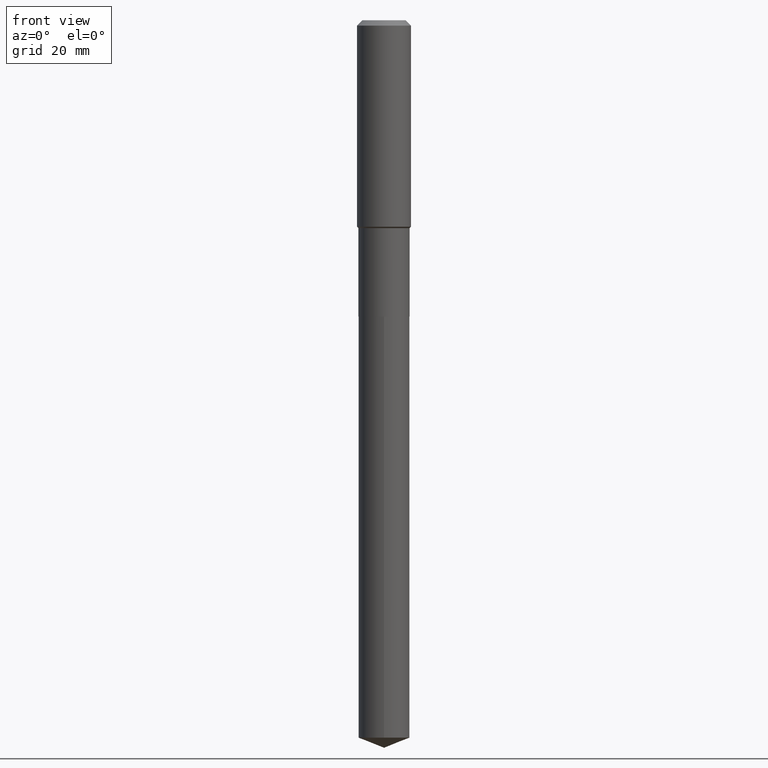
[diagram: clean part render]
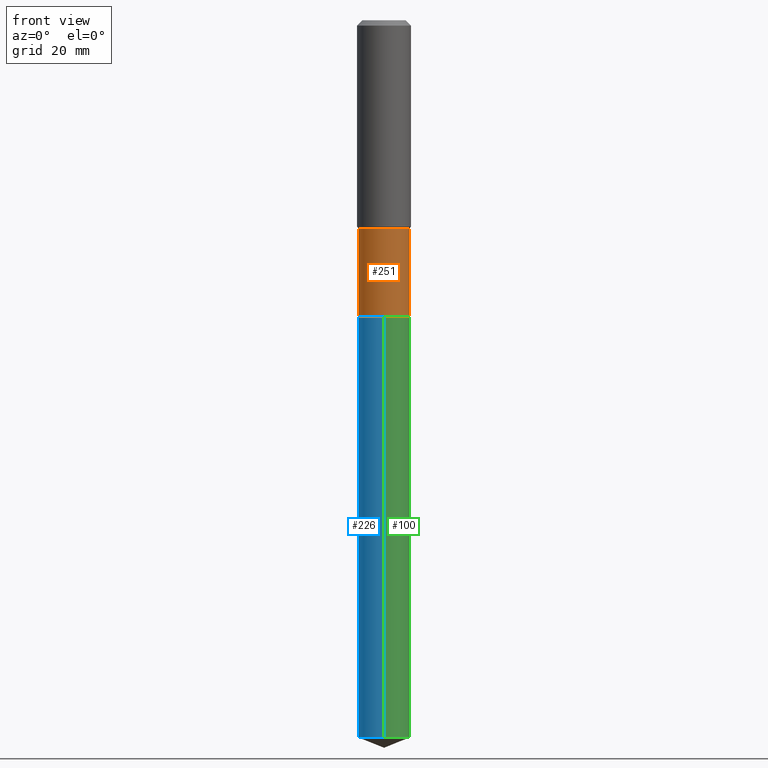
[diagram: same view with three faces highlighted in distinct colors, each labeled with its STEP entity id]
A machine part, front view with three faces highlighted in distinct colors.
Their STEP definitions:

[orange] entity #251 — the highlighted cylindrical surface (edge-blend (fillet) strip) has radius 5.6998 mm, axis along (-0, 0, 1).
#11 = VERTEX_POINT ( 'NONE', #417 ) ;
#28 = DIRECTION ( 'NONE',  ( -2.445468806185136597E-29, 3.491481338843145583E-15, 1.000000000000000000 ) ) ;
#40 = DIRECTION ( 'NONE',  ( 1.000000000000000000, -6.982962677686266711E-15, 0.000000000000000000 ) ) ;
#79 = DIRECTION ( 'NONE',  ( 1.000000000000000000, -6.982962677686266711E-15, 4.876176775795936353E-29 ) ) ;
#95 = CARTESIAN_POINT ( 'NONE',  ( 0.2243999999999999329, -1.566976824872797810E-15, 1.094214068488607769E-29 ) ) ;
#97 = CARTESIAN_POINT ( 'NONE',  ( 4.456622352391794524E-29, -6.362875591907751010E-15, -1.822400000000000686 ) ) ;
#116 = CARTESIAN_POINT ( 'NONE',  ( 0.000000000000000000, 0.000000000000000000, 0.000000000000000000 ) ) ;
#138 = AXIS2_PLACEMENT_3D ( 'NONE', #232, #385, #40 ) ;
#139 = VERTEX_POINT ( 'NONE', #471 ) ;
#141 = VERTEX_POINT ( 'NONE', #432 ) ;
#157 = CIRCLE ( 'NONE', #260, 0.2243999999999999051 ) ;
#160 = CARTESIAN_POINT ( 'NONE',  ( -0.2243999999999999606, -6.122239581998517513E-15, -2.597900000000000542 ) ) ;
#164 = FACE_OUTER_BOUND ( 'NONE', #234, .T. ) ;
#169 = CARTESIAN_POINT ( 'NONE',  ( -0.2243999999999999329, 1.594457899045664340E-15, -1.103809034253200604E-29 ) ) ;
#172 = DIRECTION ( 'NONE',  ( 1.000000000000000000, -6.982962677686265922E-15, 0.000000000000000000 ) ) ;
#183 = ORIENTED_EDGE ( 'NONE', *, *, #449, .F. ) ;
#197 = VERTEX_POINT ( 'NONE', #160 ) ;
#232 = CARTESIAN_POINT ( 'NONE',  ( 6.353083411588368076E-29, -9.070519370180611907E-15, -2.597900000000000542 ) ) ;
#234 = EDGE_LOOP ( 'NONE', ( #183, #372, #298, #269 ) ) ;
#251 = ADVANCED_FACE ( 'NONE', ( #164 ), #310, .T. ) ;
#260 = AXIS2_PLACEMENT_3D ( 'NONE', #97, #28, #172 ) ;
#269 = ORIENTED_EDGE ( 'NONE', *, *, #338, .F. ) ;
#273 = VECTOR ( 'NONE', #316, 39.37007874015748143 ) ;
#276 = EDGE_CURVE ( 'NONE', #197, #141, #427, .T. ) ;
#298 = ORIENTED_EDGE ( 'NONE', *, *, #423, .T. ) ;
#310 = CYLINDRICAL_SURFACE ( 'NONE', #437, 0.2243999999999999329 ) ;
#316 = DIRECTION ( 'NONE',  ( -2.445468806185136877E-29, 3.491481338843145188E-15, 1.000000000000000000 ) ) ;
#338 = EDGE_CURVE ( 'NONE', #139, #11, #157, .T. ) ;
#342 = VECTOR ( 'NONE', #434, 39.37007874015748143 ) ;
#372 = ORIENTED_EDGE ( 'NONE', *, *, #276, .T. ) ;
#385 = DIRECTION ( 'NONE',  ( -2.445468806185136597E-29, 3.491481338843145583E-15, 1.000000000000000000 ) ) ;
#417 = CARTESIAN_POINT ( 'NONE',  ( 0.2243999999999999051, -7.929852416780548622E-15, -1.822400000000000686 ) ) ;
#419 = DIRECTION ( 'NONE',  ( -2.445468806185136597E-29, 3.491481338843145583E-15, 1.000000000000000000 ) ) ;
#423 = EDGE_CURVE ( 'NONE', #141, #11, #439, .T. ) ;
#427 = CIRCLE ( 'NONE', #138, 0.2244000000000000161 ) ;
#432 = CARTESIAN_POINT ( 'NONE',  ( 0.2244000000000000161, -1.063749619505341031E-14, -2.597900000000000542 ) ) ;
#434 = DIRECTION ( 'NONE',  ( -2.445468806185136877E-29, 3.491481338843145188E-15, 1.000000000000000000 ) ) ;
#437 = AXIS2_PLACEMENT_3D ( 'NONE', #116, #419, #79 ) ;
#439 = LINE ( 'NONE', #95, #342 ) ;
#449 = EDGE_CURVE ( 'NONE', #197, #139, #474, .T. ) ;
#471 = CARTESIAN_POINT ( 'NONE',  ( -0.2243999999999999051, -6.122239581998517513E-15, -1.822400000000000686 ) ) ;
#474 = LINE ( 'NONE', #169, #273 ) ;

[blue] entity #226 — the highlighted cylindrical surface (edge-blend (fillet) strip) has radius 5.6998 mm, axis along (-0, 0, 1).
#16 = CARTESIAN_POINT ( 'NONE',  ( 1.594457899045728238E-15, 0.2243999999999909123, -2.598400000000001597 ) ) ;
#44 = CARTESIAN_POINT ( 'NONE',  ( 6.354306145991460877E-29, -9.072265110850034200E-15, -2.598400000000000709 ) ) ;
#45 = VERTEX_POINT ( 'NONE', #475 ) ;
#48 = CARTESIAN_POINT ( 'NONE',  ( 1.594457899045818168E-15, 0.2243999999999780059, -6.289506489272009837 ) ) ;
#57 = DIRECTION ( 'NONE',  ( -6.982962677686265133E-15, -1.000000000000000000, 2.434802133390608632E-15 ) ) ;
#67 = ORIENTED_EDGE ( 'NONE', *, *, #121, .F. ) ;
#102 = ORIENTED_EDGE ( 'NONE', *, *, #457, .T. ) ;
#121 = EDGE_CURVE ( 'NONE', #257, #407, #436, .T. ) ;
#133 = DIRECTION ( 'NONE',  ( -2.445449169258695004E-29, 3.491509460039474509E-15, 1.000000000000000000 ) ) ;
#135 = EDGE_CURVE ( 'NONE', #191, #257, #250, .T. ) ;
#153 = DIRECTION ( 'NONE',  ( -2.445449169258695004E-29, 3.491509460039474509E-15, 1.000000000000000000 ) ) ;
#158 = CYLINDRICAL_SURFACE ( 'NONE', #438, 0.2244000000000000161 ) ;
#165 = DIRECTION ( 'NONE',  ( -2.445449169258695004E-29, 3.491509460039474509E-15, 1.000000000000000000 ) ) ;
#166 = CIRCLE ( 'NONE', #489, 0.2244000000000000161 ) ;
#191 = VERTEX_POINT ( 'NONE', #48 ) ;
#226 = ADVANCED_FACE ( 'NONE', ( #467 ), #158, .T. ) ;
#241 = EDGE_LOOP ( 'NONE', ( #255, #446, #102, #67 ) ) ;
#249 = CARTESIAN_POINT ( 'NONE',  ( 6.354306145991460877E-29, -9.072265110850034200E-15, -2.598400000000000709 ) ) ;
#250 = LINE ( 'NONE', #16, #294 ) ;
#255 = ORIENTED_EDGE ( 'NONE', *, *, #135, .F. ) ;
#257 = VERTEX_POINT ( 'NONE', #275 ) ;
#275 = CARTESIAN_POINT ( 'NONE',  ( 1.594457899045818957E-15, 0.2243999999999909123, -2.598400000000001597 ) ) ;
#286 = CARTESIAN_POINT ( 'NONE',  ( -1.566976824872734504E-15, -0.2244000000000090922, -2.598400000000000265 ) ) ;
#294 = VECTOR ( 'NONE', #315, 39.37007874015748143 ) ;
#315 = DIRECTION ( 'NONE',  ( -2.445449169258695004E-29, 3.491509460039474509E-15, 1.000000000000000000 ) ) ;
#332 = AXIS2_PLACEMENT_3D ( 'NONE', #249, #165, #57 ) ;
#361 = DIRECTION ( 'NONE',  ( -6.982962677686265133E-15, -1.000000000000000000, 4.869604266781217263E-15 ) ) ;
#389 = VECTOR ( 'NONE', #444, 39.37007874015748143 ) ;
#396 = LINE ( 'NONE', #286, #389 ) ;
#401 = EDGE_CURVE ( 'NONE', #191, #45, #166, .T. ) ;
#407 = VERTEX_POINT ( 'NONE', #441 ) ;
#436 = CIRCLE ( 'NONE', #332, 0.2244000000000000161 ) ;
#438 = AXIS2_PLACEMENT_3D ( 'NONE', #44, #153, #464 ) ;
#441 = CARTESIAN_POINT ( 'NONE',  ( -1.566976824872734504E-15, -0.2244000000000090922, -2.598400000000000265 ) ) ;
#444 = DIRECTION ( 'NONE',  ( -2.445449169258695004E-29, 3.491509460039474509E-15, 1.000000000000000000 ) ) ;
#446 = ORIENTED_EDGE ( 'NONE', *, *, #401, .T. ) ;
#457 = EDGE_CURVE ( 'NONE', #45, #407, #396, .T. ) ;
#464 = DIRECTION ( 'NONE',  ( -6.982962677686265133E-15, -1.000000000000000000, 2.434802133390608632E-15 ) ) ;
#467 = FACE_OUTER_BOUND ( 'NONE', #241, .T. ) ;
#469 = CARTESIAN_POINT ( 'NONE',  ( 1.538071944382707100E-28, -2.195979833615634179E-14, -6.289506489272008949 ) ) ;
#475 = CARTESIAN_POINT ( 'NONE',  ( -1.566976824872643982E-15, -0.2244000000000218875, -6.289506489272008061 ) ) ;
#489 = AXIS2_PLACEMENT_3D ( 'NONE', #469, #133, #361 ) ;

[green] entity #100 — the highlighted cylindrical surface (edge-blend (fillet) strip) has radius 5.6998 mm, axis along (-0, 0, 1).
#1 = EDGE_LOOP ( 'NONE', ( #70, #73, #159, #308 ) ) ;
#16 = CARTESIAN_POINT ( 'NONE',  ( 1.594457899045728238E-15, 0.2243999999999909123, -2.598400000000001597 ) ) ;
#27 = DIRECTION ( 'NONE',  ( -2.445449169258695004E-29, 3.491509460039474509E-15, 1.000000000000000000 ) ) ;
#37 = AXIS2_PLACEMENT_3D ( 'NONE', #393, #208, #206 ) ;
#45 = VERTEX_POINT ( 'NONE', #475 ) ;
#48 = CARTESIAN_POINT ( 'NONE',  ( 1.594457899045818168E-15, 0.2243999999999780059, -6.289506489272009837 ) ) ;
#58 = DIRECTION ( 'NONE',  ( -6.982962677686265133E-15, -1.000000000000000000, 4.869604266781217263E-15 ) ) ;
#70 = ORIENTED_EDGE ( 'NONE', *, *, #320, .T. ) ;
#73 = ORIENTED_EDGE ( 'NONE', *, *, #135, .T. ) ;
#90 = CARTESIAN_POINT ( 'NONE',  ( 1.538071944382707100E-28, -2.195979833615634179E-14, -6.289506489272008949 ) ) ;
#100 = ADVANCED_FACE ( 'NONE', ( #283 ), #440, .T. ) ;
#105 = AXIS2_PLACEMENT_3D ( 'NONE', #90, #27, #58 ) ;
#135 = EDGE_CURVE ( 'NONE', #191, #257, #250, .T. ) ;
#159 = ORIENTED_EDGE ( 'NONE', *, *, #371, .F. ) ;
#173 = CARTESIAN_POINT ( 'NONE',  ( 6.354306145991460877E-29, -9.072265110850034200E-15, -2.598400000000000709 ) ) ;
#191 = VERTEX_POINT ( 'NONE', #48 ) ;
#204 = CIRCLE ( 'NONE', #37, 0.2244000000000000161 ) ;
#206 = DIRECTION ( 'NONE',  ( -6.982962677686265133E-15, -1.000000000000000000, 2.434802133390608632E-15 ) ) ;
#208 = DIRECTION ( 'NONE',  ( -2.445449169258695004E-29, 3.491509460039474509E-15, 1.000000000000000000 ) ) ;
#221 = AXIS2_PLACEMENT_3D ( 'NONE', #173, #325, #397 ) ;
#250 = LINE ( 'NONE', #16, #294 ) ;
#257 = VERTEX_POINT ( 'NONE', #275 ) ;
#275 = CARTESIAN_POINT ( 'NONE',  ( 1.594457899045818957E-15, 0.2243999999999909123, -2.598400000000001597 ) ) ;
#283 = FACE_OUTER_BOUND ( 'NONE', #1, .T. ) ;
#286 = CARTESIAN_POINT ( 'NONE',  ( -1.566976824872734504E-15, -0.2244000000000090922, -2.598400000000000265 ) ) ;
#294 = VECTOR ( 'NONE', #315, 39.37007874015748143 ) ;
#308 = ORIENTED_EDGE ( 'NONE', *, *, #457, .F. ) ;
#315 = DIRECTION ( 'NONE',  ( -2.445449169258695004E-29, 3.491509460039474509E-15, 1.000000000000000000 ) ) ;
#320 = EDGE_CURVE ( 'NONE', #45, #191, #395, .T. ) ;
#325 = DIRECTION ( 'NONE',  ( -2.445449169258695004E-29, 3.491509460039474509E-15, 1.000000000000000000 ) ) ;
#371 = EDGE_CURVE ( 'NONE', #407, #257, #204, .T. ) ;
#389 = VECTOR ( 'NONE', #444, 39.37007874015748143 ) ;
#393 = CARTESIAN_POINT ( 'NONE',  ( 6.354306145991460877E-29, -9.072265110850034200E-15, -2.598400000000000709 ) ) ;
#395 = CIRCLE ( 'NONE', #105, 0.2244000000000000161 ) ;
#396 = LINE ( 'NONE', #286, #389 ) ;
#397 = DIRECTION ( 'NONE',  ( -6.982962677686265133E-15, -1.000000000000000000, 2.434802133390608632E-15 ) ) ;
#407 = VERTEX_POINT ( 'NONE', #441 ) ;
#440 = CYLINDRICAL_SURFACE ( 'NONE', #221, 0.2244000000000000161 ) ;
#441 = CARTESIAN_POINT ( 'NONE',  ( -1.566976824872734504E-15, -0.2244000000000090922, -2.598400000000000265 ) ) ;
#444 = DIRECTION ( 'NONE',  ( -2.445449169258695004E-29, 3.491509460039474509E-15, 1.000000000000000000 ) ) ;
#457 = EDGE_CURVE ( 'NONE', #45, #407, #396, .T. ) ;
#475 = CARTESIAN_POINT ( 'NONE',  ( -1.566976824872643982E-15, -0.2244000000000218875, -6.289506489272008061 ) ) ;